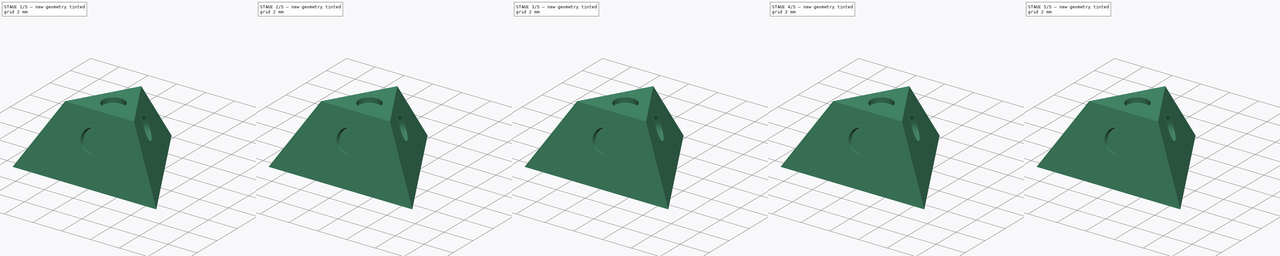
[diagram: build sequence overview — one tinted view per stage of 5, left to right]
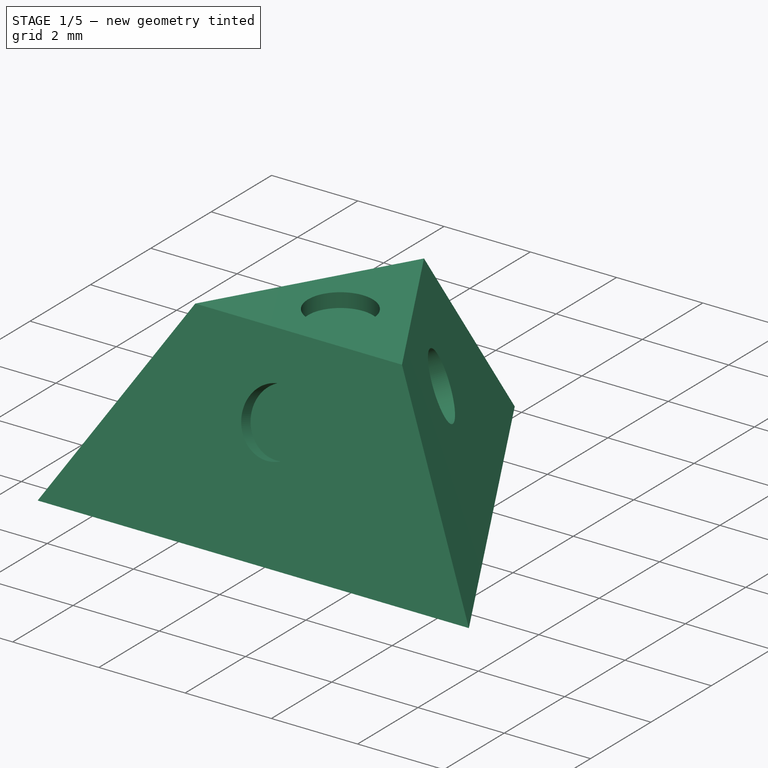
[diagram: stage 1 of 5 — iso view after this stage's code; geometry added in this stage tinted green]
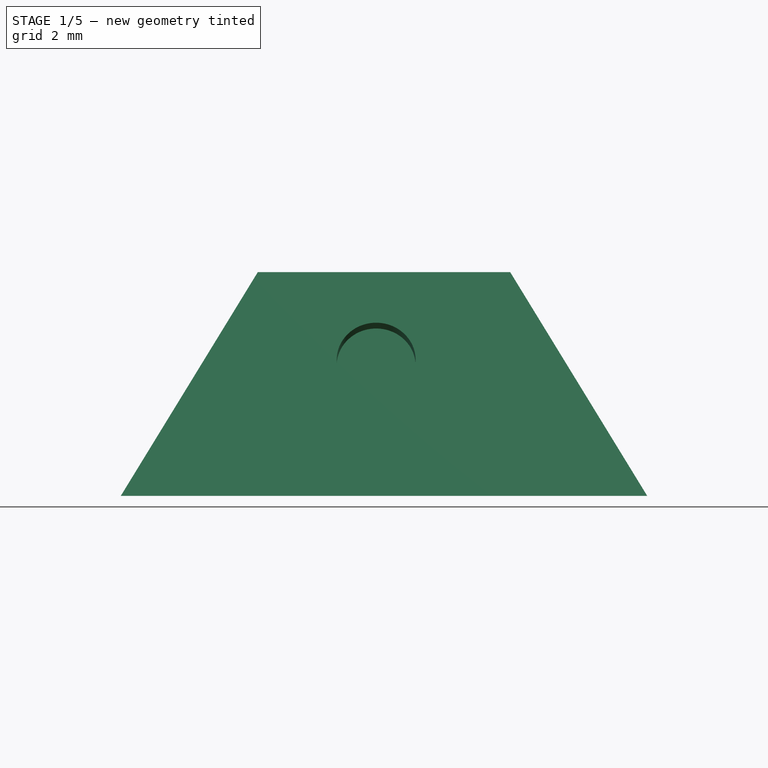
[diagram: stage 1 of 5 — front view after this stage's code; geometry added in this stage tinted green]
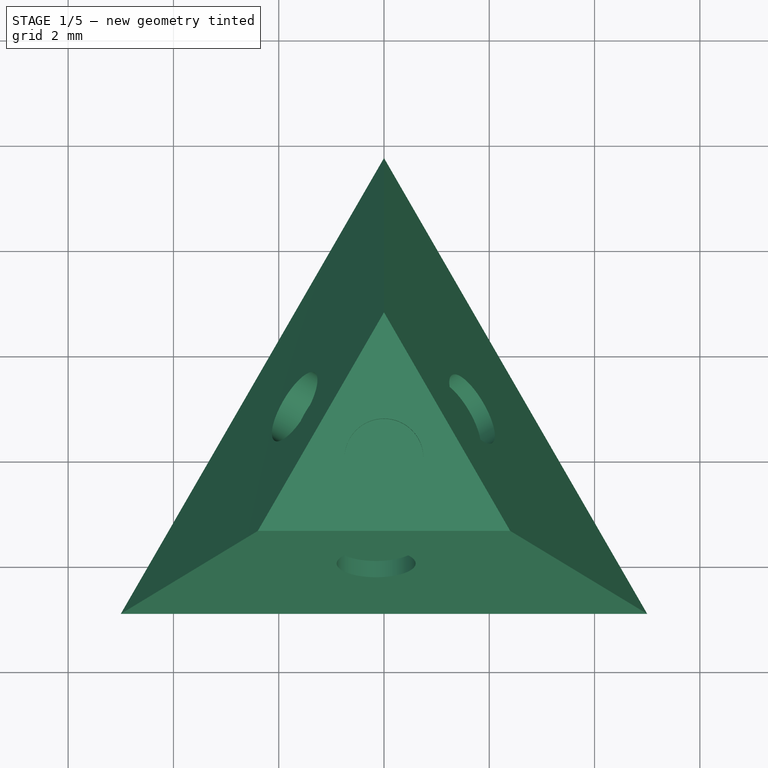
[diagram: stage 1 of 5 — top view after this stage's code; geometry added in this stage tinted green]
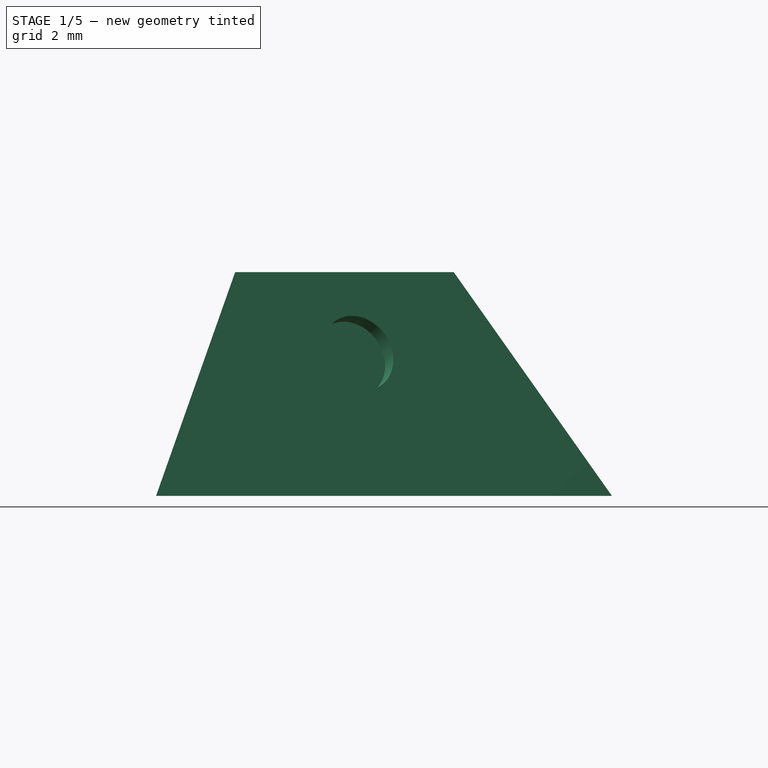
[diagram: stage 1 of 5 — right view after this stage's code; geometry added in this stage tinted green]
FCSTD DOCUMENT  (FreeCAD 0.21R33771 (Git))
Label: draft-4-face-section-corner-4
License: All rights reserved
LicenseURL: http://en.wikipedia.org/wiki/All_rights_reserved
objects: PartDesign::SubtractiveCylinder×25, PartDesign::Plane×15, Sketcher::SketchObject×10, PartDesign::AdditiveLoft×5, PartDesign::Body×5, App::Part×2
note: 90 computed .brp shape members not serialized (recipe doc carries the construction recipe); baked Part::Feature solids carry a one-line shape summary decoded from their .brp

FEATURE [PartDesign::Body] Body003
  Group = -> [Sketch006,Sketch007,AdditiveLoft003,Cylinder015,DatumPlane009,Cylinder016,DatumPlane010,Cylinder017,DatumPlane011,Cylinder018,Cylinder019]
  Origin = -> Origin005
  Tip = -> Cylinder019
FEATURE [Sketcher::SketchObject] Sketch008
  FullyConstrained = true
  MapMode = 5
  Support = -> [XY_Plane006]
  sketch-geometry (6):
    g0: LineSegment StartX=-5 StartY=-2.88675 StartZ=0 EndX=5 EndY=-2.88675 EndZ=0
    g1: LineSegment StartX=-5 StartY=-2.88675 StartZ=0 EndX=0 EndY=5.7735 EndZ=0
    g2: LineSegment StartX=5 StartY=-2.88675 StartZ=0 EndX=0 EndY=5.7735 EndZ=0
    g3: LineSegment StartX=-2.5 StartY=1.44338 StartZ=0 EndX=-4e-16 EndY=4e-16 EndZ=0
    g4: LineSegment StartX=2.5 StartY=1.44338 StartZ=0 EndX=0 EndY=0 EndZ=0
    g5: LineSegment StartX=-7e-16 StartY=-2.88675 StartZ=0 EndX=0 EndY=0 EndZ=0
  constraints (16):
    c: DistanceX(g0,g0) = 10
    c: PointOnObject(g1,g-2)
    c: Coincident(g2,g0)
    c: Coincident(g2,g1)
    c: Equal(g0,g1)
    c: Equal(g1,g2)
    c: Coincident(g0,g1)
    c: PointOnObject(g3,g1)
    c: Symmetric(g0,g1,g3)
    c: PointOnObject(g4,g2)
    c: Symmetric(g1,g0,g4)
    c: PointOnObject(g5,g0)
    c: Symmetric(g0,g0,g5)
    c: Coincident(g-1,g5)
    c: Coincident(g-1,g4)
    c: Equal(g4,g3)
FEATURE [Sketcher::SketchObject] Sketch009
  FullyConstrained = true
  MapMode = 5
  Placement = pos=(0,0,0) rot=(1,0,0;1.5708rad)
  Support = -> [XZ_Plane006]
  sketch-geometry (1):
    g0: LineSegment StartX=0 StartY=0 StartZ=0 EndX=0 EndY=8.16497 EndZ=0
  constraints (3):
    c: Coincident(g0,g-1)
    c: PointOnObject(g0,g-2)
    c: DistanceY(g0,g0) = 8.16497
FEATURE [PartDesign::AdditiveLoft] AdditiveLoft004
  Closed = false
  Profile = -> Sketch008
  Ruled = false
  Sections = -> [Sketch009]
FEATURE [PartDesign::SubtractiveCylinder] Cylinder020
  Angle = 360
  AttacherType = Attacher::AttachEngine3D
  AttachmentOffset = pos=(0,0,-2.75) rot=(0,0,1;0rad)
  BaseFeature = -> AdditiveLoft004
  FirstAngle = 0
  Height = 4.25
  MapMode = 5
  Placement = pos=(0,0,8.5) rot=(1,0,0;3.14159rad)
  Radius = 3
  SecondAngle = 0
FEATURE [PartDesign::Plane] DatumPlane012
  Length = 60.0456
  MapMode = 5
  Placement = pos=(0,0,4.25) rot=(0,0,1;0rad)
  ResizeMode = 0
  Support = -> [Cylinder020]
  Width = 60.0456
FEATURE [PartDesign::SubtractiveCylinder] Cylinder021
  Angle = 360
  AttacherType = Attacher::AttachEngine3D
  AttachmentOffset = pos=(0,0,-0.33) rot=(0,0,1;0rad)
  BaseFeature = -> Cylinder020
  FirstAngle = 0
  Height = 0.33
  MapMode = 5
  Placement = pos=(0,0,3.92) rot=(0,0,1;0rad)
  Radius = 0.75
  SecondAngle = 0
  Support = -> [DatumPlane012]
FEATURE [PartDesign::Plane] DatumPlane013
  Length = 88.8622
  MapMode = 5
  Placement = pos=(1.15533,0.667032,4.39166) rot=(0.272385,0.596225,0.755197;2.15502rad)
  ResizeMode = 0
  Support = -> [Cylinder021]
  Width = 79.2177
FEATURE [PartDesign::SubtractiveCylinder] Cylinder022
  Angle = 360
  AttacherType = Attacher::AttachEngine3D
  AttachmentOffset = pos=(0.33,-1.75,-0.33) rot=(0,0,1;0rad)
  BaseFeature = -> Cylinder021
  FirstAngle = 0
  Height = 0.33
  MapMode = 5
  Placement = pos=(1.4033,0.802502,2.60268) rot=(0.272385,0.596225,0.755197;2.15502rad)
  Radius = 0.75
  SecondAngle = 0
  Support = -> [DatumPlane013]
FEATURE [PartDesign::Plane] DatumPlane014
  Length = 93.441
  MapMode = 5
  Placement = pos=(1.4033,-1.65889,3.47291) rot=(0.660269,0.433607,-0.613213;1.63928rad)
  ResizeMode = 0
  Support = -> [Cylinder022]
  Width = 86.2517
FEATURE [PartDesign::SubtractiveCylinder] Cylinder023  label="Cylinder003Yuck004"
  Angle = 360
  AttacherType = Attacher::AttachEngine3D
  AttachmentOffset = pos=(0.25,-1.8,-0.33) rot=(0,0,1;0rad)
  BaseFeature = -> Cylinder022
  FirstAngle = 0
  Height = 0.33
  MapMode = 5
  Placement = pos=(-0.14915,-1.66265,2.47228) rot=(0.660269,0.433607,-0.613213;1.63928rad)
  Radius = 0.75
  SecondAngle = 0
  Support = -> [DatumPlane014]
FEATURE [PartDesign::SubtractiveCylinder] Cylinder024
  Angle = 360
  AttacherType = Attacher::AttachEngine3D
  AttachmentOffset = pos=(-0.5,-1.65,-0.5) rot=(0,0,1;0rad)
  BaseFeature = -> Cylinder023
  FirstAngle = 0
  Height = 0.5
  MapMode = 5
  Placement = pos=(-1.28922,0.768769,2.41984) rot=(-0.46367,0.348753,0.814483;3.33948rad)
  Radius = 0.75
  SecondAngle = 0
  Support = -> [Cylinder023]
FEATURE [PartDesign::Body] Body004
  Group = -> [Sketch008,Sketch009,AdditiveLoft004,Cylinder020,DatumPlane012,Cylinder021,DatumPlane013,Cylinder022,DatumPlane014,Cylinder023,Cylinder024]
  Origin = -> Origin006
  Tip = -> Cylinder024
FEATURE [App::Part] Part001  label="counter"
  Group = -> [Body001,Body002,Body003,Body004]
  Origin = -> Origin002
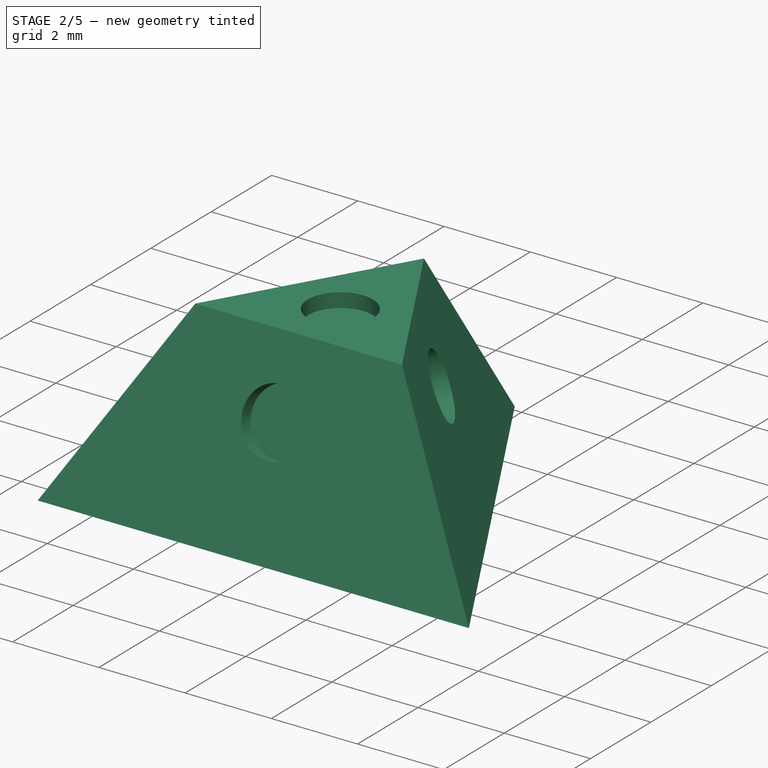
[diagram: stage 2 of 5 — iso view after this stage's code; geometry added in this stage tinted green]
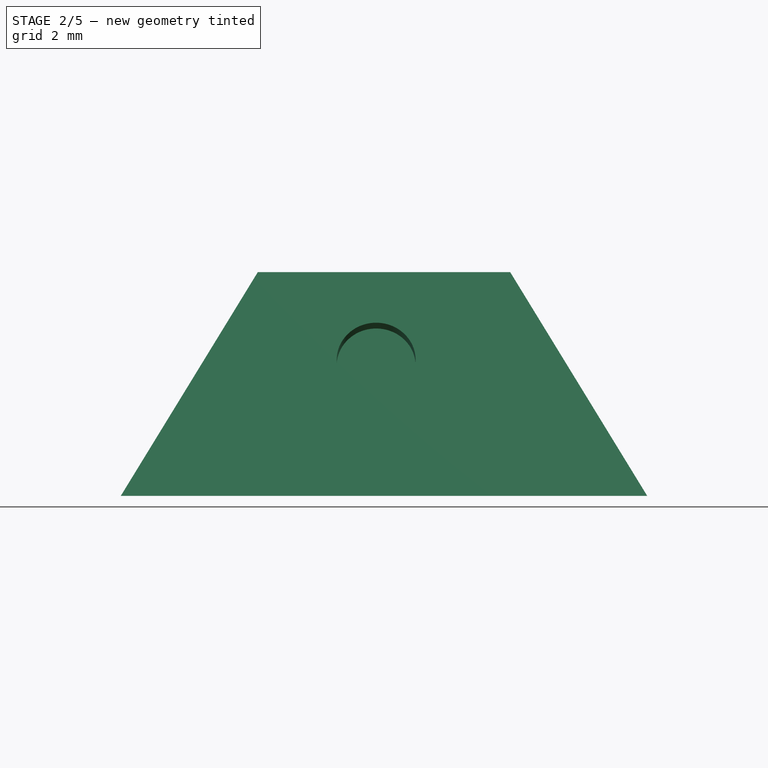
[diagram: stage 2 of 5 — front view after this stage's code; geometry added in this stage tinted green]
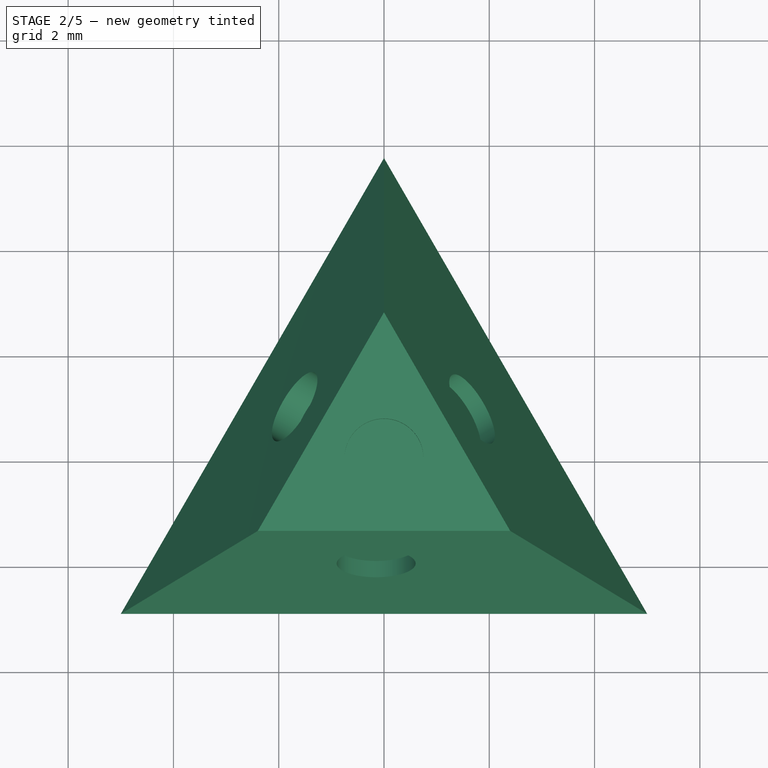
[diagram: stage 2 of 5 — top view after this stage's code; geometry added in this stage tinted green]
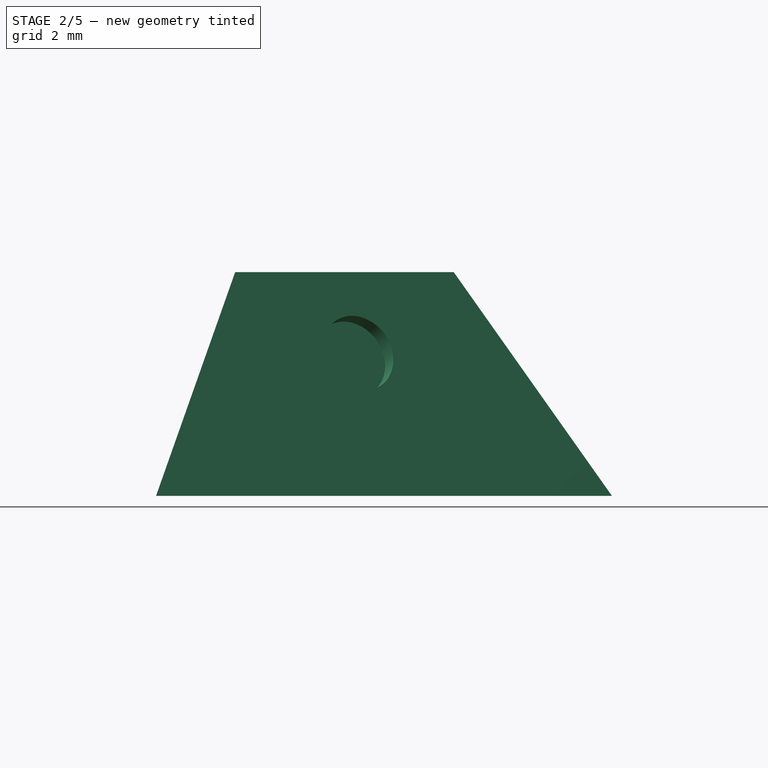
[diagram: stage 2 of 5 — right view after this stage's code; geometry added in this stage tinted green]
FEATURE [PartDesign::Body] Body002
  Group = -> [Sketch004,Sketch005,AdditiveLoft002,Cylinder010,DatumPlane006,Cylinder011,DatumPlane007,Cylinder012,DatumPlane008,Cylinder013,Cylinder014]
  Origin = -> Origin004
  Placement = pos=(0,0,-9.32) rot=(1,0,0;3.66519rad)
FEATURE [Sketcher::SketchObject] Sketch006
  FullyConstrained = true
  MapMode = 5
  Support = -> [XY_Plane005]
  sketch-geometry (6):
    g0: LineSegment StartX=-5 StartY=-2.88675 StartZ=0 EndX=5 EndY=-2.88675 EndZ=0
    g1: LineSegment StartX=-5 StartY=-2.88675 StartZ=0 EndX=0 EndY=5.7735 EndZ=0
    g2: LineSegment StartX=5 StartY=-2.88675 StartZ=0 EndX=0 EndY=5.7735 EndZ=0
    g3: LineSegment StartX=-2.5 StartY=1.44338 StartZ=0 EndX=-4e-16 EndY=4e-16 EndZ=0
    g4: LineSegment StartX=2.5 StartY=1.44338 StartZ=0 EndX=0 EndY=0 EndZ=0
    g5: LineSegment StartX=-7e-16 StartY=-2.88675 StartZ=0 EndX=0 EndY=0 EndZ=0
  constraints (16):
    c: DistanceX(g0,g0) = 10
    c: PointOnObject(g1,g-2)
    c: Coincident(g2,g0)
    c: Coincident(g2,g1)
    c: Equal(g0,g1)
    c: Equal(g1,g2)
    c: Coincident(g0,g1)
    c: PointOnObject(g3,g1)
    c: Symmetric(g0,g1,g3)
    c: PointOnObject(g4,g2)
    c: Symmetric(g1,g0,g4)
    c: PointOnObject(g5,g0)
    c: Symmetric(g0,g0,g5)
    c: Coincident(g-1,g5)
    c: Coincident(g-1,g4)
    c: Equal(g4,g3)
FEATURE [Sketcher::SketchObject] Sketch007
  FullyConstrained = true
  MapMode = 5
  Placement = pos=(0,0,0) rot=(1,0,0;1.5708rad)
  Support = -> [XZ_Plane005]
  sketch-geometry (1):
    g0: LineSegment StartX=0 StartY=0 StartZ=0 EndX=0 EndY=8.16497 EndZ=0
  constraints (3):
    c: Coincident(g0,g-1)
    c: PointOnObject(g0,g-2)
    c: DistanceY(g0,g0) = 8.16497
FEATURE [PartDesign::AdditiveLoft] AdditiveLoft003
  Closed = false
  Profile = -> Sketch006
  Ruled = false
  Sections = -> [Sketch007]
FEATURE [PartDesign::SubtractiveCylinder] Cylinder015
  Angle = 360
  AttacherType = Attacher::AttachEngine3D
  AttachmentOffset = pos=(0,0,-2.75) rot=(0,0,1;0rad)
  BaseFeature = -> AdditiveLoft003
  FirstAngle = 0
  Height = 4.25
  MapMode = 5
  Placement = pos=(0,0,8.5) rot=(1,0,0;3.14159rad)
  Radius = 3
  SecondAngle = 0
FEATURE [PartDesign::Plane] DatumPlane009
  Length = 60.0456
  MapMode = 5
  Placement = pos=(0,0,4.25) rot=(0,0,1;0rad)
  ResizeMode = 0
  Support = -> [Cylinder015]
  Width = 60.0456
FEATURE [PartDesign::SubtractiveCylinder] Cylinder016
  Angle = 360
  AttacherType = Attacher::AttachEngine3D
  AttachmentOffset = pos=(0,0,-0.33) rot=(0,0,1;0rad)
  BaseFeature = -> Cylinder015
  FirstAngle = 0
  Height = 0.33
  MapMode = 5
  Placement = pos=(0,0,3.92) rot=(0,0,1;0rad)
  Radius = 0.75
  SecondAngle = 0
  Support = -> [DatumPlane009]
FEATURE [PartDesign::Plane] DatumPlane010
  Length = 88.8622
  MapMode = 5
  Placement = pos=(1.15533,0.667032,4.39166) rot=(0.272385,0.596225,0.755197;2.15502rad)
  ResizeMode = 0
  Support = -> [Cylinder016]
  Width = 79.2177
FEATURE [PartDesign::SubtractiveCylinder] Cylinder017
  Angle = 360
  AttacherType = Attacher::AttachEngine3D
  AttachmentOffset = pos=(0.33,-1.75,-0.33) rot=(0,0,1;0rad)
  BaseFeature = -> Cylinder016
  FirstAngle = 0
  Height = 0.33
  MapMode = 5
  Placement = pos=(1.4033,0.802502,2.60268) rot=(0.272385,0.596225,0.755197;2.15502rad)
  Radius = 0.75
  SecondAngle = 0
  Support = -> [DatumPlane010]
FEATURE [PartDesign::Plane] DatumPlane011
  Length = 93.441
  MapMode = 5
  Placement = pos=(1.4033,-1.65889,3.47291) rot=(0.660269,0.433607,-0.613213;1.63928rad)
  ResizeMode = 0
  Support = -> [Cylinder017]
  Width = 86.2517
FEATURE [PartDesign::SubtractiveCylinder] Cylinder018  label="Cylinder003Yuck003"
  Angle = 360
  AttacherType = Attacher::AttachEngine3D
  AttachmentOffset = pos=(0.25,-1.8,-0.33) rot=(0,0,1;0rad)
  BaseFeature = -> Cylinder017
  FirstAngle = 0
  Height = 0.33
  MapMode = 5
  Placement = pos=(-0.14915,-1.66265,2.47228) rot=(0.660269,0.433607,-0.613213;1.63928rad)
  Radius = 0.75
  SecondAngle = 0
  Support = -> [DatumPlane011]
FEATURE [PartDesign::SubtractiveCylinder] Cylinder019
  Angle = 360
  AttacherType = Attacher::AttachEngine3D
  AttachmentOffset = pos=(-0.5,-1.65,-0.5) rot=(0,0,1;0rad)
  BaseFeature = -> Cylinder018
  FirstAngle = 0
  Height = 0.5
  MapMode = 5
  Placement = pos=(-1.28922,0.768769,2.41984) rot=(-0.46367,0.348753,0.814483;3.33948rad)
  Radius = 0.75
  SecondAngle = 0
  Support = -> [Cylinder018]
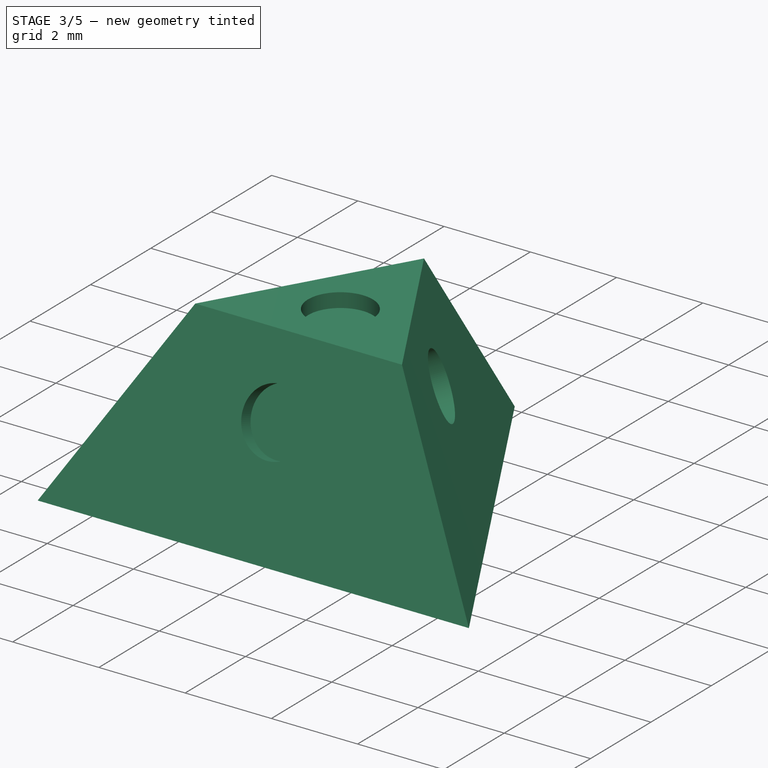
[diagram: stage 3 of 5 — iso view after this stage's code; geometry added in this stage tinted green]
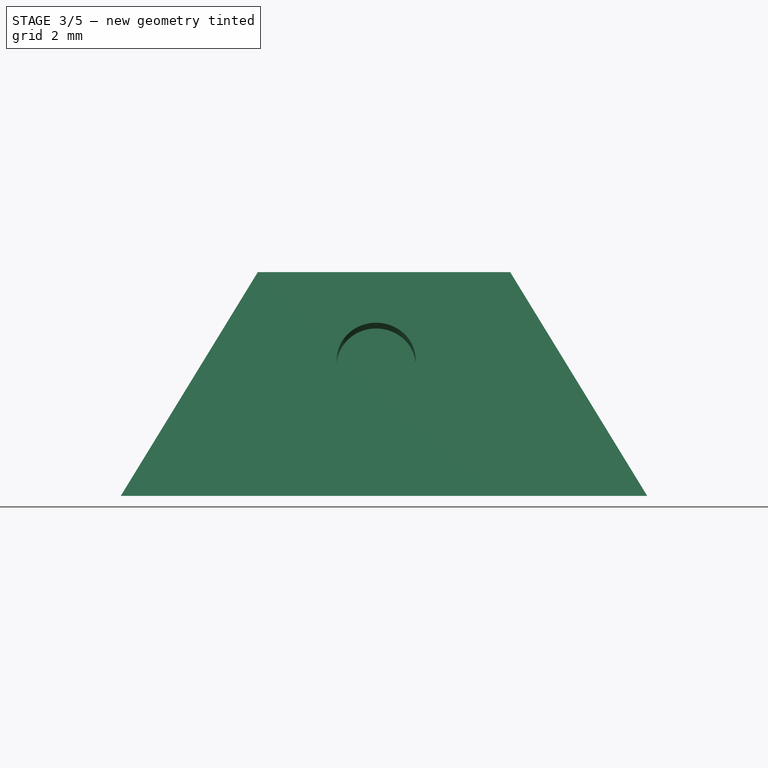
[diagram: stage 3 of 5 — front view after this stage's code; geometry added in this stage tinted green]
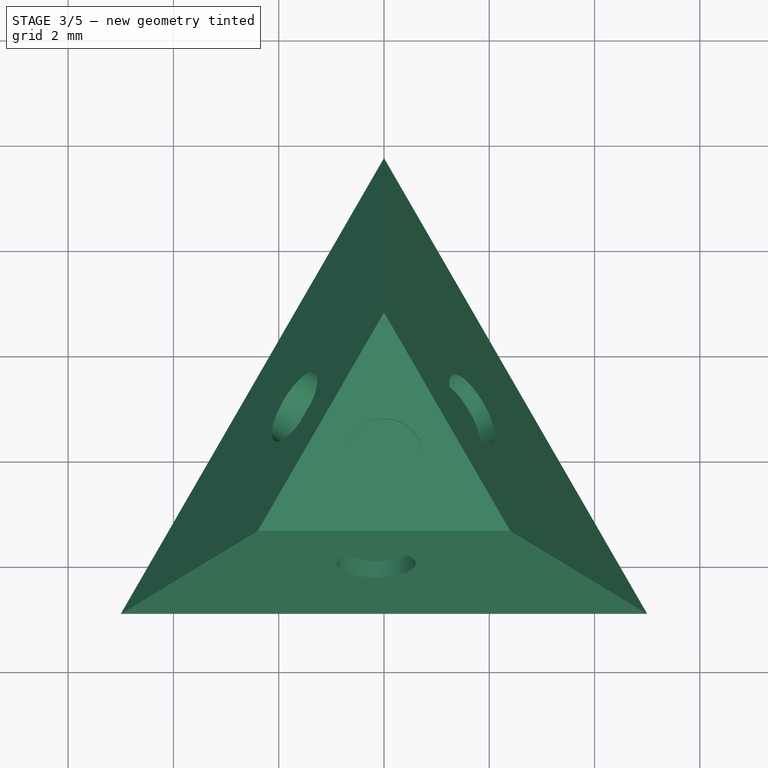
[diagram: stage 3 of 5 — top view after this stage's code; geometry added in this stage tinted green]
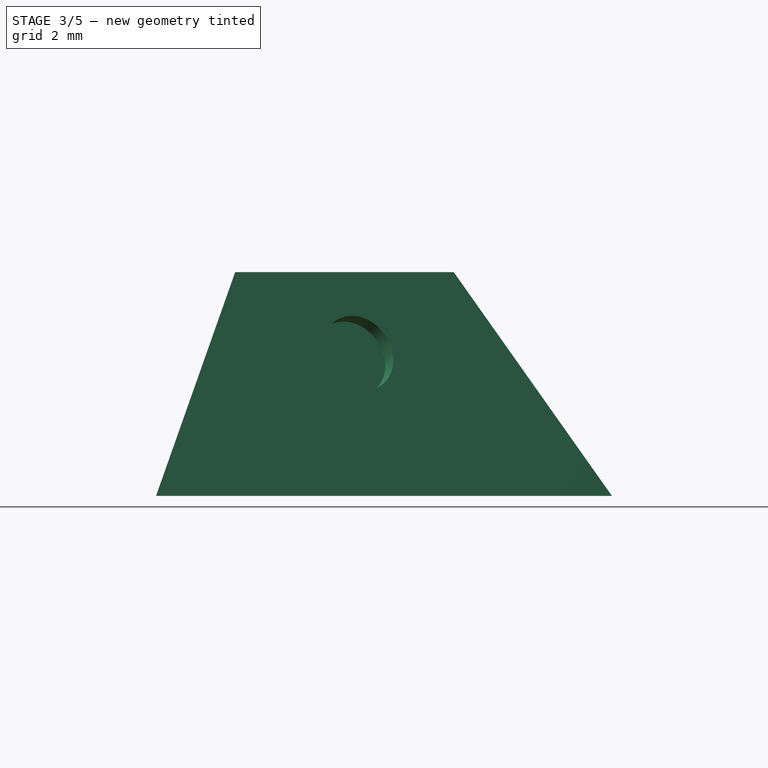
[diagram: stage 3 of 5 — right view after this stage's code; geometry added in this stage tinted green]
FEATURE [PartDesign::Body] Body001
  Group = -> [Sketch002,Sketch003,AdditiveLoft001,Cylinder005,DatumPlane003,Cylinder006,DatumPlane004,Cylinder007,DatumPlane005,Cylinder008,Cylinder009]
  Origin = -> Origin003
  Tip = -> Cylinder009
FEATURE [Sketcher::SketchObject] Sketch004
  FullyConstrained = true
  MapMode = 5
  Support = -> [XY_Plane004]
  sketch-geometry (6):
    g0: LineSegment StartX=-5 StartY=-2.88675 StartZ=0 EndX=5 EndY=-2.88675 EndZ=0
    g1: LineSegment StartX=-5 StartY=-2.88675 StartZ=0 EndX=0 EndY=5.7735 EndZ=0
    g2: LineSegment StartX=5 StartY=-2.88675 StartZ=0 EndX=0 EndY=5.7735 EndZ=0
    g3: LineSegment StartX=-2.5 StartY=1.44338 StartZ=0 EndX=-4e-16 EndY=4e-16 EndZ=0
    g4: LineSegment StartX=2.5 StartY=1.44338 StartZ=0 EndX=0 EndY=0 EndZ=0
    g5: LineSegment StartX=-7e-16 StartY=-2.88675 StartZ=0 EndX=0 EndY=0 EndZ=0
  constraints (16):
    c: DistanceX(g0,g0) = 10
    c: PointOnObject(g1,g-2)
    c: Coincident(g2,g0)
    c: Coincident(g2,g1)
    c: Equal(g0,g1)
    c: Equal(g1,g2)
    c: Coincident(g0,g1)
    c: PointOnObject(g3,g1)
    c: Symmetric(g0,g1,g3)
    c: PointOnObject(g4,g2)
    c: Symmetric(g1,g0,g4)
    c: PointOnObject(g5,g0)
    c: Symmetric(g0,g0,g5)
    c: Coincident(g-1,g5)
    c: Coincident(g-1,g4)
    c: Equal(g4,g3)
FEATURE [Sketcher::SketchObject] Sketch005
  FullyConstrained = true
  MapMode = 5
  Placement = pos=(0,0,0) rot=(1,0,0;1.5708rad)
  Support = -> [XZ_Plane004]
  sketch-geometry (1):
    g0: LineSegment StartX=0 StartY=0 StartZ=0 EndX=0 EndY=8.16497 EndZ=0
  constraints (3):
    c: Coincident(g0,g-1)
    c: PointOnObject(g0,g-2)
    c: DistanceY(g0,g0) = 8.16497
FEATURE [PartDesign::AdditiveLoft] AdditiveLoft002
  Closed = false
  Profile = -> Sketch004
  Ruled = false
  Sections = -> [Sketch005]
FEATURE [PartDesign::SubtractiveCylinder] Cylinder010
  Angle = 360
  AttacherType = Attacher::AttachEngine3D
  AttachmentOffset = pos=(0,0,-2.75) rot=(0,0,1;0rad)
  BaseFeature = -> AdditiveLoft002
  FirstAngle = 0
  Height = 4.25
  MapMode = 5
  Placement = pos=(0,0,8.5) rot=(1,0,0;3.14159rad)
  Radius = 3
  SecondAngle = 0
FEATURE [PartDesign::Plane] DatumPlane006
  Length = 60.0456
  MapMode = 5
  Placement = pos=(0,0,4.25) rot=(0,0,1;0rad)
  ResizeMode = 0
  Support = -> [Cylinder010]
  Width = 60.0456
FEATURE [PartDesign::SubtractiveCylinder] Cylinder011
  Angle = 360
  AttacherType = Attacher::AttachEngine3D
  AttachmentOffset = pos=(0,0,-0.33) rot=(0,0,1;0rad)
  BaseFeature = -> Cylinder010
  FirstAngle = 0
  Height = 0.33
  MapMode = 5
  Placement = pos=(0,0,3.92) rot=(0,0,1;0rad)
  Radius = 0.75
  SecondAngle = 0
  Support = -> [DatumPlane006]
FEATURE [PartDesign::Plane] DatumPlane007
  Length = 88.8622
  MapMode = 5
  Placement = pos=(1.15533,0.667032,4.39166) rot=(0.272385,0.596225,0.755197;2.15502rad)
  ResizeMode = 0
  Support = -> [Cylinder011]
  Width = 79.2177
FEATURE [PartDesign::SubtractiveCylinder] Cylinder012
  Angle = 360
  AttacherType = Attacher::AttachEngine3D
  AttachmentOffset = pos=(0.33,-1.75,-0.33) rot=(0,0,1;0rad)
  BaseFeature = -> Cylinder011
  FirstAngle = 0
  Height = 0.33
  MapMode = 5
  Placement = pos=(1.4033,0.802502,2.60268) rot=(0.272385,0.596225,0.755197;2.15502rad)
  Radius = 0.75
  SecondAngle = 0
  Support = -> [DatumPlane007]
FEATURE [PartDesign::Plane] DatumPlane008
  Length = 93.441
  MapMode = 5
  Placement = pos=(1.4033,-1.65889,3.47291) rot=(0.660269,0.433607,-0.613213;1.63928rad)
  ResizeMode = 0
  Support = -> [Cylinder012]
  Width = 86.2517
FEATURE [PartDesign::SubtractiveCylinder] Cylinder013  label="Cylinder003Yuck002"
  Angle = 360
  AttacherType = Attacher::AttachEngine3D
  AttachmentOffset = pos=(0.25,-1.8,-0.33) rot=(0,0,1;0rad)
  BaseFeature = -> Cylinder012
  FirstAngle = 0
  Height = 0.33
  MapMode = 5
  Placement = pos=(-0.14915,-1.66265,2.47228) rot=(0.660269,0.433607,-0.613213;1.63928rad)
  Radius = 0.75
  SecondAngle = 0
  Support = -> [DatumPlane008]
FEATURE [PartDesign::SubtractiveCylinder] Cylinder014
  Angle = 360
  AttacherType = Attacher::AttachEngine3D
  AttachmentOffset = pos=(-0.5,-1.65,-0.5) rot=(0,0,1;0rad)
  BaseFeature = -> Cylinder013
  FirstAngle = 0
  Height = 0.5
  MapMode = 5
  Placement = pos=(-1.28922,0.768769,2.41984) rot=(-0.46367,0.348753,0.814483;3.33948rad)
  Radius = 0.75
  SecondAngle = 0
  Support = -> [Cylinder013]
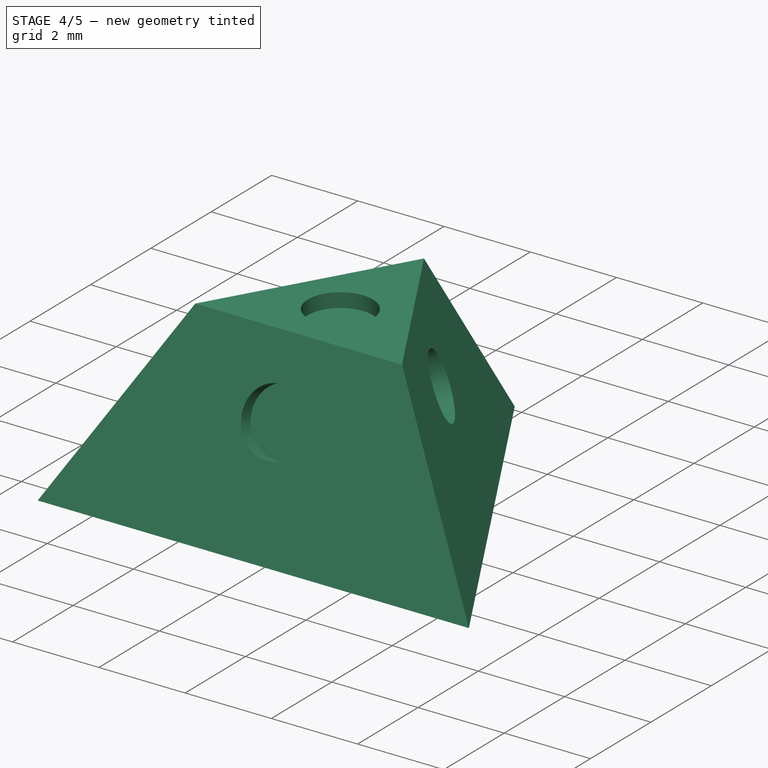
[diagram: stage 4 of 5 — iso view after this stage's code; geometry added in this stage tinted green]
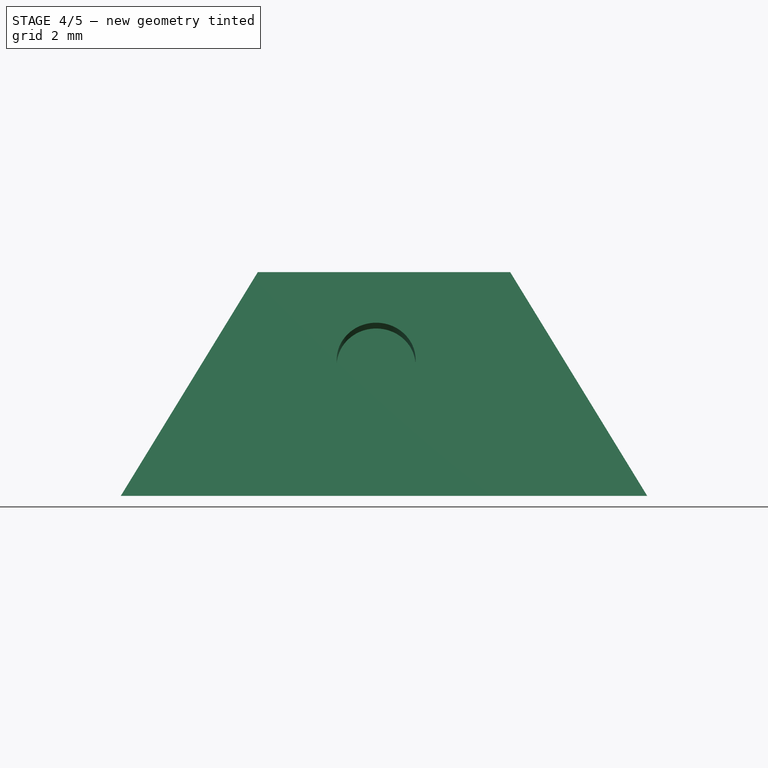
[diagram: stage 4 of 5 — front view after this stage's code; geometry added in this stage tinted green]
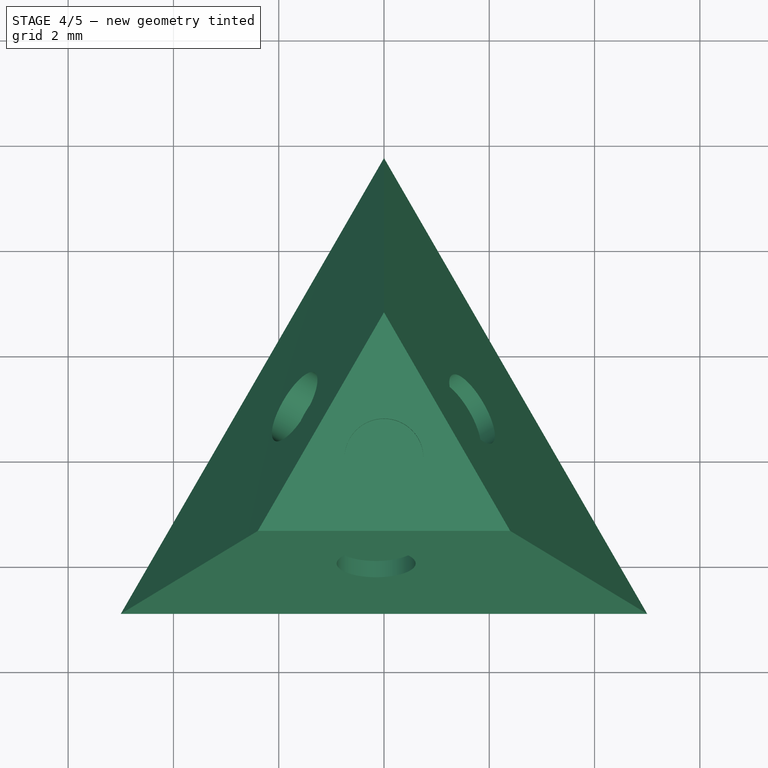
[diagram: stage 4 of 5 — top view after this stage's code; geometry added in this stage tinted green]
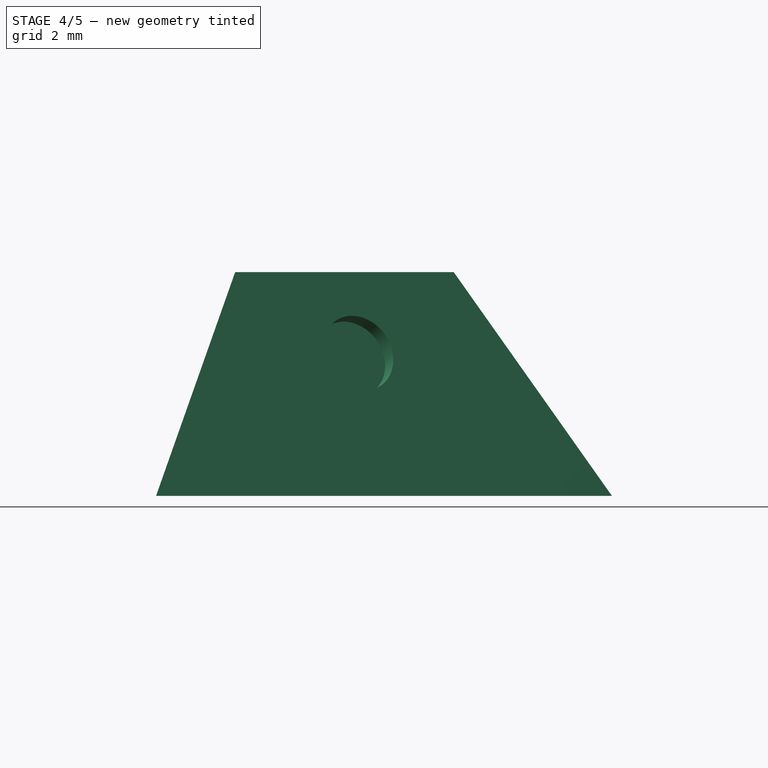
[diagram: stage 4 of 5 — right view after this stage's code; geometry added in this stage tinted green]
FEATURE [PartDesign::Body] Body
  Group = -> [Sketch,Sketch001,AdditiveLoft,Cylinder,DatumPlane,Cylinder001,DatumPlane001,Cylinder002,DatumPlane002,Cylinder003,Cylinder004]
  Origin = -> Origin001
  Tip = -> Cylinder004
FEATURE [App::Part] Part
  Group = -> [Body]
  Origin = -> Origin
FEATURE [Sketcher::SketchObject] Sketch002
  FullyConstrained = true
  MapMode = 5
  Support = -> [XY_Plane003]
  sketch-geometry (6):
    g0: LineSegment StartX=-5 StartY=-2.88675 StartZ=0 EndX=5 EndY=-2.88675 EndZ=0
    g1: LineSegment StartX=-5 StartY=-2.88675 StartZ=0 EndX=0 EndY=5.7735 EndZ=0
    g2: LineSegment StartX=5 StartY=-2.88675 StartZ=0 EndX=0 EndY=5.7735 EndZ=0
    g3: LineSegment StartX=-2.5 StartY=1.44338 StartZ=0 EndX=-4e-16 EndY=4e-16 EndZ=0
    g4: LineSegment StartX=2.5 StartY=1.44338 StartZ=0 EndX=0 EndY=0 EndZ=0
    g5: LineSegment StartX=-7e-16 StartY=-2.88675 StartZ=0 EndX=0 EndY=0 EndZ=0
  constraints (16):
    c: DistanceX(g0,g0) = 10
    c: PointOnObject(g1,g-2)
    c: Coincident(g2,g0)
    c: Coincident(g2,g1)
    c: Equal(g0,g1)
    c: Equal(g1,g2)
    c: Coincident(g0,g1)
    c: PointOnObject(g3,g1)
    c: Symmetric(g0,g1,g3)
    c: PointOnObject(g4,g2)
    c: Symmetric(g1,g0,g4)
    c: PointOnObject(g5,g0)
    c: Symmetric(g0,g0,g5)
    c: Coincident(g-1,g5)
    c: Coincident(g-1,g4)
    c: Equal(g4,g3)
FEATURE [Sketcher::SketchObject] Sketch003
  FullyConstrained = true
  MapMode = 5
  Placement = pos=(0,0,0) rot=(1,0,0;1.5708rad)
  Support = -> [XZ_Plane003]
  sketch-geometry (1):
    g0: LineSegment StartX=0 StartY=0 StartZ=0 EndX=0 EndY=8.16497 EndZ=0
  constraints (3):
    c: Coincident(g0,g-1)
    c: PointOnObject(g0,g-2)
    c: DistanceY(g0,g0) = 8.16497
FEATURE [PartDesign::AdditiveLoft] AdditiveLoft001
  Closed = false
  Profile = -> Sketch002
  Ruled = false
  Sections = -> [Sketch003]
FEATURE [PartDesign::SubtractiveCylinder] Cylinder005
  Angle = 360
  AttacherType = Attacher::AttachEngine3D
  AttachmentOffset = pos=(0,0,-2.75) rot=(0,0,1;0rad)
  BaseFeature = -> AdditiveLoft001
  FirstAngle = 0
  Height = 4.25
  MapMode = 5
  Placement = pos=(0,0,8.5) rot=(1,0,0;3.14159rad)
  Radius = 3
  SecondAngle = 0
FEATURE [PartDesign::Plane] DatumPlane003
  Length = 60.0456
  MapMode = 5
  Placement = pos=(0,0,4.25) rot=(0,0,1;0rad)
  ResizeMode = 0
  Support = -> [Cylinder005]
  Width = 60.0456
FEATURE [PartDesign::SubtractiveCylinder] Cylinder006
  Angle = 360
  AttacherType = Attacher::AttachEngine3D
  AttachmentOffset = pos=(0,0,-0.33) rot=(0,0,1;0rad)
  BaseFeature = -> Cylinder005
  FirstAngle = 0
  Height = 0.33
  MapMode = 5
  Placement = pos=(0,0,3.92) rot=(0,0,1;0rad)
  Radius = 0.75
  SecondAngle = 0
  Support = -> [DatumPlane003]
FEATURE [PartDesign::Plane] DatumPlane004
  Length = 88.8622
  MapMode = 5
  Placement = pos=(1.15533,0.667032,4.39166) rot=(0.272385,0.596225,0.755197;2.15502rad)
  ResizeMode = 0
  Support = -> [Cylinder006]
  Width = 79.2177
FEATURE [PartDesign::SubtractiveCylinder] Cylinder007
  Angle = 360
  AttacherType = Attacher::AttachEngine3D
  AttachmentOffset = pos=(0.33,-1.75,-0.33) rot=(0,0,1;0rad)
  BaseFeature = -> Cylinder006
  FirstAngle = 0
  Height = 0.33
  MapMode = 5
  Placement = pos=(1.4033,0.802502,2.60268) rot=(0.272385,0.596225,0.755197;2.15502rad)
  Radius = 0.75
  SecondAngle = 0
  Support = -> [DatumPlane004]
FEATURE [PartDesign::Plane] DatumPlane005
  Length = 93.441
  MapMode = 5
  Placement = pos=(1.4033,-1.65889,3.47291) rot=(0.660269,0.433607,-0.613213;1.63928rad)
  ResizeMode = 0
  Support = -> [Cylinder007]
  Width = 86.2517
FEATURE [PartDesign::SubtractiveCylinder] Cylinder008  label="Cylinder003Yuck001"
  Angle = 360
  AttacherType = Attacher::AttachEngine3D
  AttachmentOffset = pos=(0.25,-1.8,-0.33) rot=(0,0,1;0rad)
  BaseFeature = -> Cylinder007
  FirstAngle = 0
  Height = 0.33
  MapMode = 5
  Placement = pos=(-0.14915,-1.66265,2.47228) rot=(0.660269,0.433607,-0.613213;1.63928rad)
  Radius = 0.75
  SecondAngle = 0
  Support = -> [DatumPlane005]
FEATURE [PartDesign::SubtractiveCylinder] Cylinder009
  Angle = 360
  AttacherType = Attacher::AttachEngine3D
  AttachmentOffset = pos=(-0.5,-1.65,-0.5) rot=(0,0,1;0rad)
  BaseFeature = -> Cylinder008
  FirstAngle = 0
  Height = 0.5
  MapMode = 5
  Placement = pos=(-1.28922,0.768769,2.41984) rot=(-0.46367,0.348753,0.814483;3.33948rad)
  Radius = 0.75
  SecondAngle = 0
  Support = -> [Cylinder008]
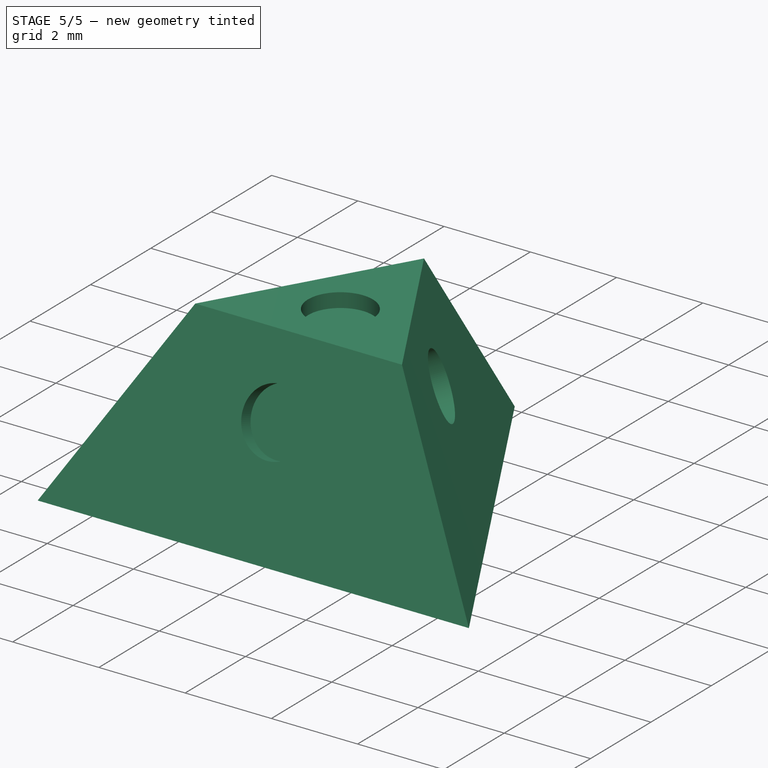
[diagram: stage 5 of 5 — iso view after this stage's code; geometry added in this stage tinted green]
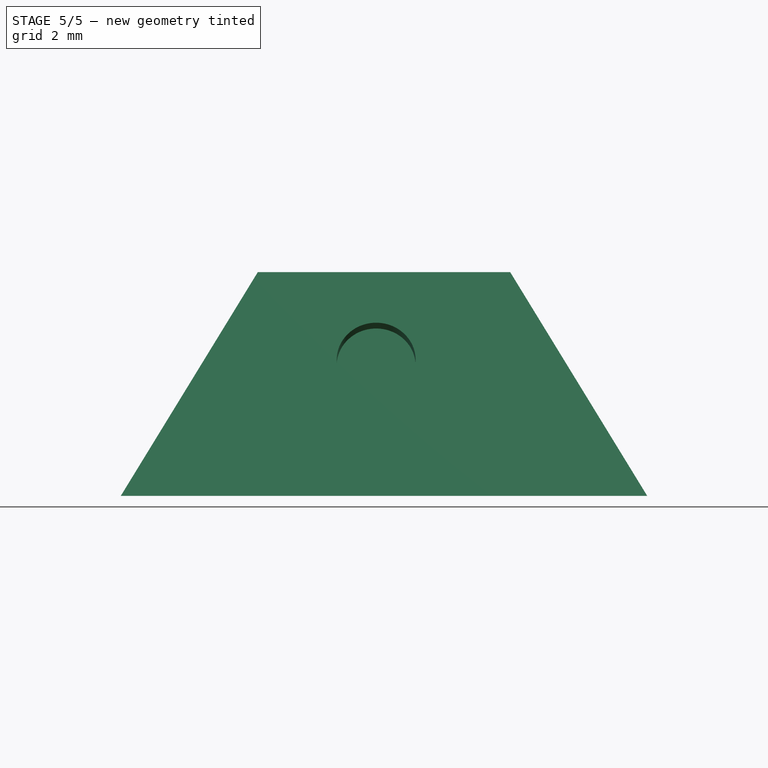
[diagram: stage 5 of 5 — front view after this stage's code; geometry added in this stage tinted green]
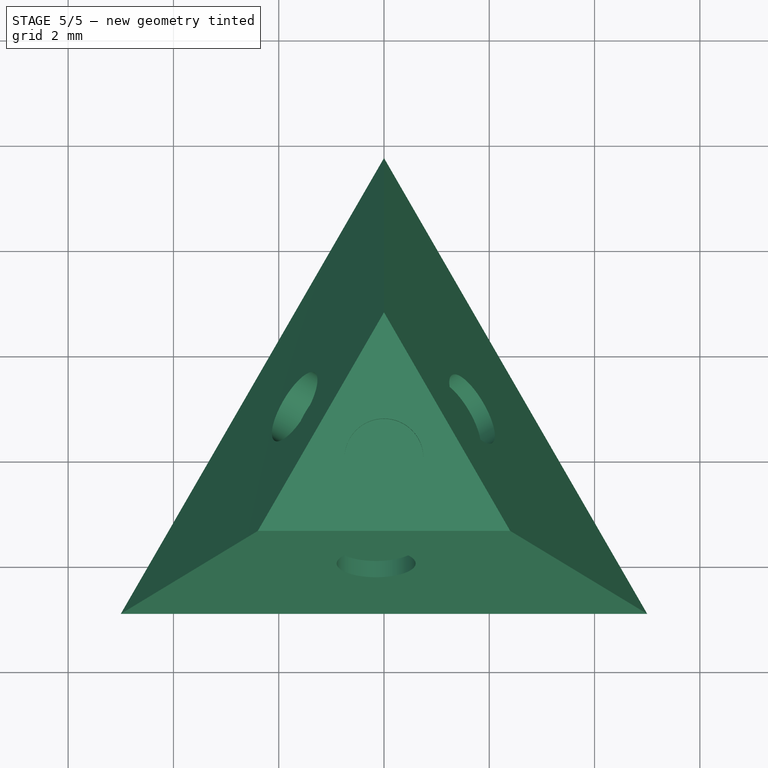
[diagram: stage 5 of 5 — top view after this stage's code; geometry added in this stage tinted green]
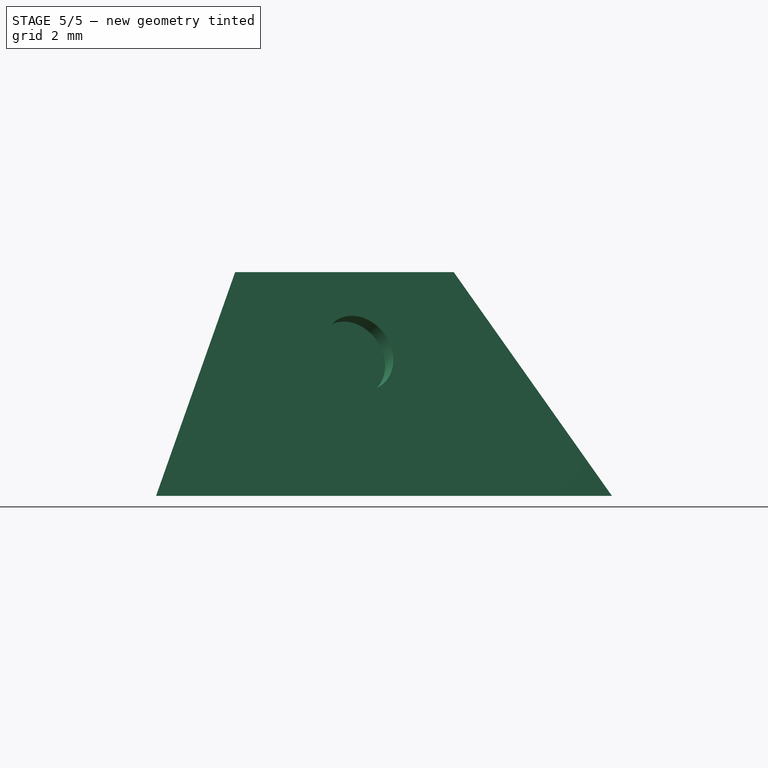
[diagram: stage 5 of 5 — right view after this stage's code; geometry added in this stage tinted green]
FEATURE [Sketcher::SketchObject] Sketch
  FullyConstrained = true
  MapMode = 5
  Support = -> [XY_Plane001]
  sketch-geometry (6):
    g0: LineSegment StartX=-5 StartY=-2.88675 StartZ=0 EndX=5 EndY=-2.88675 EndZ=0
    g1: LineSegment StartX=-5 StartY=-2.88675 StartZ=0 EndX=0 EndY=5.7735 EndZ=0
    g2: LineSegment StartX=5 StartY=-2.88675 StartZ=0 EndX=0 EndY=5.7735 EndZ=0
    g3: LineSegment StartX=-2.5 StartY=1.44338 StartZ=0 EndX=-4e-16 EndY=4e-16 EndZ=0
    g4: LineSegment StartX=2.5 StartY=1.44338 StartZ=0 EndX=0 EndY=0 EndZ=0
    g5: LineSegment StartX=-7e-16 StartY=-2.88675 StartZ=0 EndX=0 EndY=0 EndZ=0
  constraints (16):
    c: DistanceX(g0,g0) = 10
    c: PointOnObject(g1,g-2)
    c: Coincident(g2,g0)
    c: Coincident(g2,g1)
    c: Equal(g0,g1)
    c: Equal(g1,g2)
    c: Coincident(g0,g1)
    c: PointOnObject(g3,g1)
    c: Symmetric(g0,g1,g3)
    c: PointOnObject(g4,g2)
    c: Symmetric(g1,g0,g4)
    c: PointOnObject(g5,g0)
    c: Symmetric(g0,g0,g5)
    c: Coincident(g-1,g5)
    c: Coincident(g-1,g4)
    c: Equal(g4,g3)
FEATURE [Sketcher::SketchObject] Sketch001
  FullyConstrained = true
  MapMode = 5
  Placement = pos=(0,0,0) rot=(1,0,0;1.5708rad)
  Support = -> [XZ_Plane001]
  sketch-geometry (1):
    g0: LineSegment StartX=0 StartY=0 StartZ=0 EndX=0 EndY=8.16497 EndZ=0
  constraints (3):
    c: Coincident(g0,g-1)
    c: PointOnObject(g0,g-2)
    c: DistanceY(g0,g0) = 8.16497
FEATURE [PartDesign::AdditiveLoft] AdditiveLoft
  Closed = false
  Profile = -> Sketch
  Ruled = false
  Sections = -> [Sketch001]
FEATURE [PartDesign::SubtractiveCylinder] Cylinder
  Angle = 360
  AttacherType = Attacher::AttachEngine3D
  AttachmentOffset = pos=(0,0,-2.75) rot=(0,0,1;0rad)
  BaseFeature = -> AdditiveLoft
  FirstAngle = 0
  Height = 4.25
  MapMode = 5
  Placement = pos=(0,0,8.5) rot=(1,0,0;3.14159rad)
  Radius = 3
  SecondAngle = 0
FEATURE [PartDesign::Plane] DatumPlane
  Length = 60.0456
  MapMode = 5
  Placement = pos=(0,0,4.25) rot=(0,0,1;0rad)
  ResizeMode = 0
  Support = -> [Cylinder]
  Width = 60.0456
FEATURE [PartDesign::SubtractiveCylinder] Cylinder001
  Angle = 360
  AttacherType = Attacher::AttachEngine3D
  AttachmentOffset = pos=(0,0,-0.33) rot=(0,0,1;0rad)
  BaseFeature = -> Cylinder
  FirstAngle = 0
  Height = 0.33
  MapMode = 5
  Placement = pos=(0,0,3.92) rot=(0,0,1;0rad)
  Radius = 0.75
  SecondAngle = 0
  Support = -> [DatumPlane]
FEATURE [PartDesign::Plane] DatumPlane001
  Length = 88.8622
  MapMode = 5
  Placement = pos=(1.15533,0.667032,4.39166) rot=(0.272385,0.596225,0.755197;2.15502rad)
  ResizeMode = 0
  Support = -> [Cylinder001]
  Width = 79.2177
FEATURE [PartDesign::SubtractiveCylinder] Cylinder002
  Angle = 360
  AttacherType = Attacher::AttachEngine3D
  AttachmentOffset = pos=(0.33,-1.75,-0.33) rot=(0,0,1;0rad)
  BaseFeature = -> Cylinder001
  FirstAngle = 0
  Height = 0.33
  MapMode = 5
  Placement = pos=(1.4033,0.802502,2.60268) rot=(0.272385,0.596225,0.755197;2.15502rad)
  Radius = 0.75
  SecondAngle = 0
  Support = -> [DatumPlane001]
FEATURE [PartDesign::Plane] DatumPlane002
  Length = 93.441
  MapMode = 5
  Placement = pos=(1.4033,-1.65889,3.47291) rot=(0.660269,0.433607,-0.613213;1.63928rad)
  ResizeMode = 0
  Support = -> [Cylinder002]
  Width = 86.2517
FEATURE [PartDesign::SubtractiveCylinder] Cylinder003  label="Cylinder003Yuck"
  Angle = 360
  AttacherType = Attacher::AttachEngine3D
  AttachmentOffset = pos=(0.25,-1.8,-0.33) rot=(0,0,1;0rad)
  BaseFeature = -> Cylinder002
  FirstAngle = 0
  Height = 0.33
  MapMode = 5
  Placement = pos=(-0.14915,-1.66265,2.47228) rot=(0.660269,0.433607,-0.613213;1.63928rad)
  Radius = 0.75
  SecondAngle = 0
  Support = -> [DatumPlane002]
FEATURE [PartDesign::SubtractiveCylinder] Cylinder004
  Angle = 360
  AttacherType = Attacher::AttachEngine3D
  AttachmentOffset = pos=(-0.5,-1.65,-0.5) rot=(0,0,1;0rad)
  BaseFeature = -> Cylinder003
  FirstAngle = 0
  Height = 0.5
  MapMode = 5
  Placement = pos=(-1.28922,0.768769,2.41984) rot=(-0.46367,0.348753,0.814483;3.33948rad)
  Radius = 0.75
  SecondAngle = 0
  Support = -> [Cylinder003]
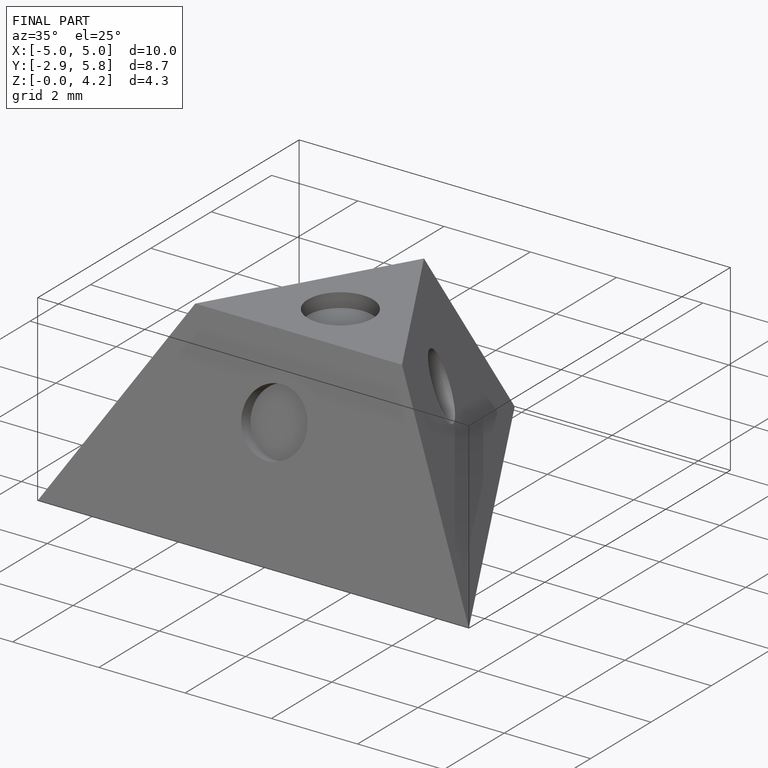
[diagram: finished part — iso view with bounding-box wireframe]
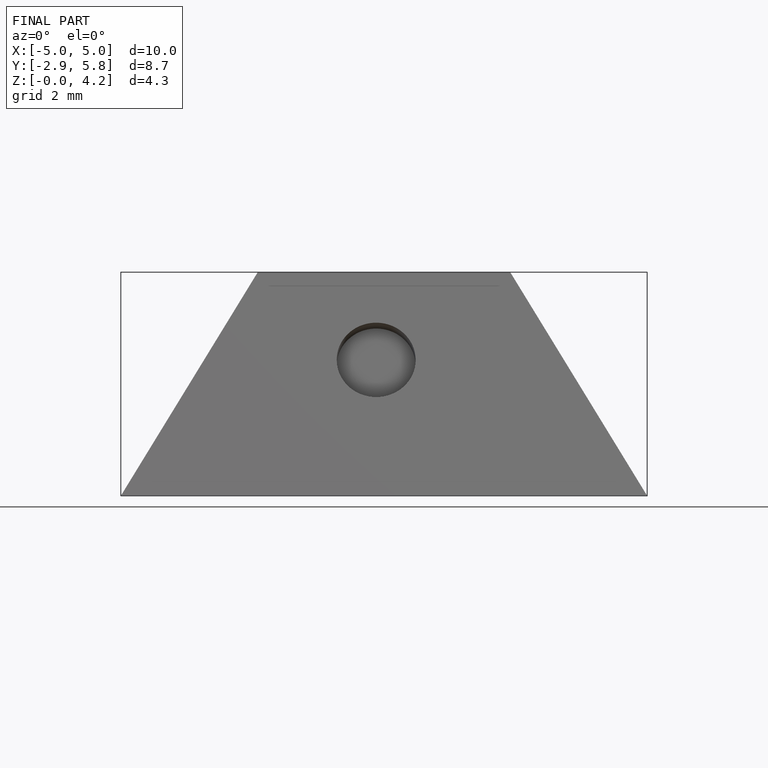
[diagram: finished part — front view with bounding-box wireframe]
